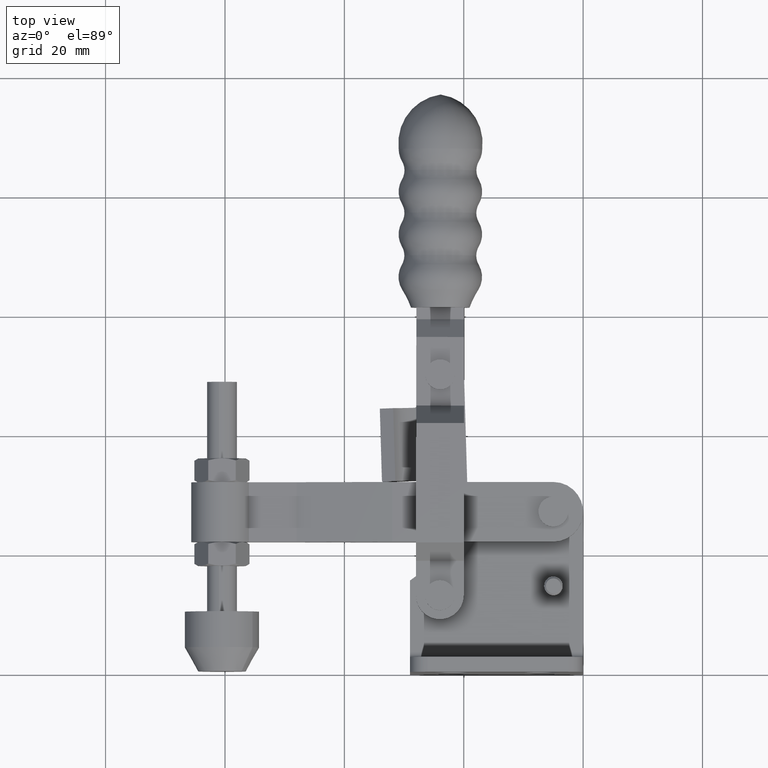
[diagram: clean part render]
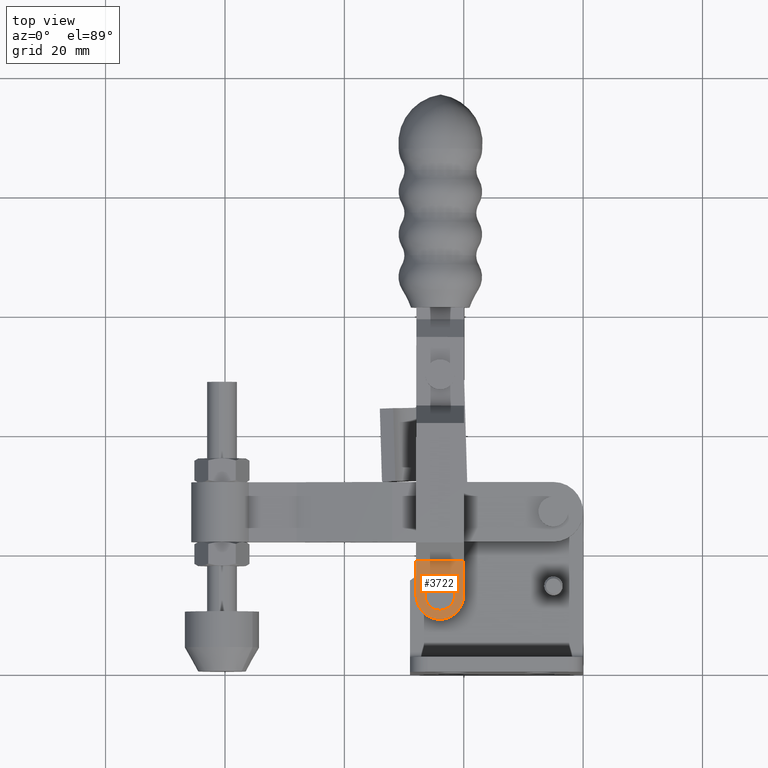
[diagram: same view with one face highlighted and labeled with its STEP entity id]
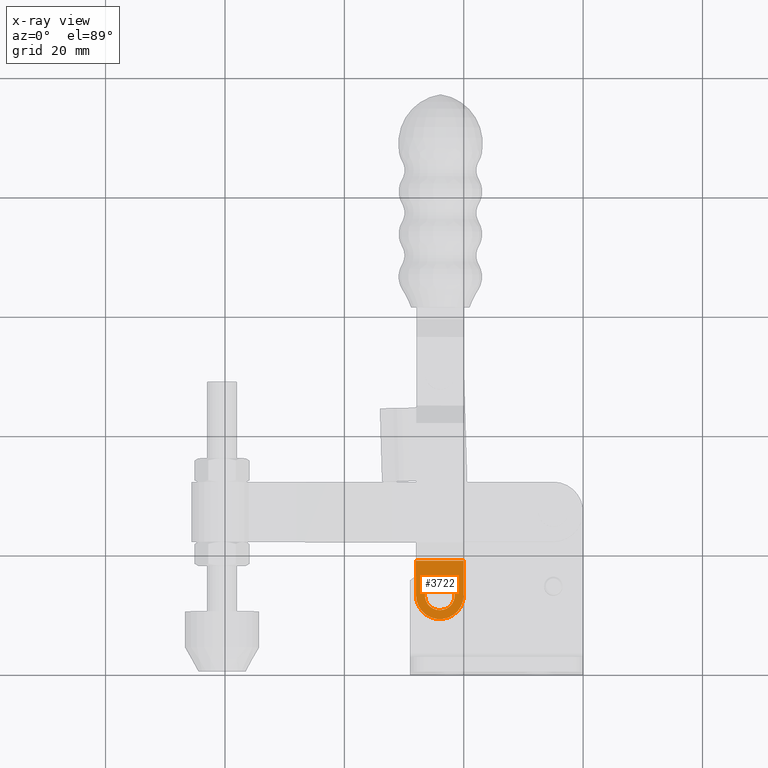
[diagram: x-ray of the same camera — body ghosted, the highlighted face saturated]
A machine part, top view. The second image highlights one B-rep face of the part: STEP entity #3722.
The next image is the same camera in x-ray: the body ghosted, the highlighted face saturated — about 0% of this face is hidden behind the body in this view.
In plain terms, the highlighted planar face has unit normal (-0, 0, -1).
Its self-contained STEP definition (entity closure, byte-faithful):
#206 = AXIS2_PLACEMENT_3D ( 'NONE', #2673, #7826, #3452 ) ;
#381 = EDGE_CURVE ( 'NONE', #3053, #2656, #4893, .T. ) ;
#434 = EDGE_LOOP ( 'NONE', ( #7868, #5192, #8756, #9531 ) ) ;
#502 = PLANE ( 'NONE',  #6645 ) ;
#795 = VERTEX_POINT ( 'NONE', #3860 ) ;
#881 = LINE ( 'NONE', #6065, #1128 ) ;
#988 = DIRECTION ( 'NONE',  ( -0.001365529430395566700, -0.9999990676642527300, -9.295653429488339400E-016 ) ) ;
#1128 = VECTOR ( 'NONE', #1587, 1000.000000000000000 ) ;
#1228 = AXIS2_PLACEMENT_3D ( 'NONE', #2123, #7298, #2895 ) ;
#1417 = CIRCLE ( 'NONE', #206, 2.500000000000001800 ) ;
#1540 = VECTOR ( 'NONE', #6091, 1000.000000000000000 ) ;
#1587 = DIRECTION ( 'NONE',  ( -0.001365529430395566700, -0.9999990676642527300, -9.295653429488339400E-016 ) ) ;
#1607 = CARTESIAN_POINT ( 'NONE',  ( -19.99208365864664600, 18.79453247473087900, 5.000000000000081700 ) ) ;
#1645 = VECTOR ( 'NONE', #988, 1000.000000000000000 ) ;
#1957 = VERTEX_POINT ( 'NONE', #4568 ) ;
#2021 = CARTESIAN_POINT ( 'NONE',  ( -23.99999999999994700, 12.99999999999990800, 5.000000000000079000 ) ) ;
#2123 = CARTESIAN_POINT ( 'NONE',  ( -23.99999999999995000, 12.99999999999994800, 5.000000000000079000 ) ) ;
#2656 = VERTEX_POINT ( 'NONE', #8801 ) ;
#2673 = CARTESIAN_POINT ( 'NONE',  ( -23.99999999999994700, 12.99999999999990800, 5.000000000000079000 ) ) ;
#2757 = EDGE_LOOP ( 'NONE', ( #4169, #7909 ) ) ;
#2826 = DIRECTION ( 'NONE',  ( -0.9999990676642527300, 0.001365529430395566700, 4.431672016822974400E-017 ) ) ;
#2866 = EDGE_CURVE ( 'NONE', #1957, #795, #881, .T. ) ;
#2895 = DIRECTION ( 'NONE',  ( -0.9999990676642527300, 0.001365529430395487800, 0.0000000000000000000 ) ) ;
#3040 = AXIS2_PLACEMENT_3D ( 'NONE', #2021, #5244, #4947 ) ;
#3053 = VERTEX_POINT ( 'NONE', #5710 ) ;
#3452 = DIRECTION ( 'NONE',  ( -0.9999990676642527300, 0.001365529430395750200, 0.0000000000000000000 ) ) ;
#3560 = LINE ( 'NONE', #1607, #1540 ) ;
#3660 = LINE ( 'NONE', #4011, #1645 ) ;
#3722 = ADVANCED_FACE ( 'NONE', ( #8410, #4772 ), #502, .F. ) ;
#3860 = CARTESIAN_POINT ( 'NONE',  ( -27.99999627065696500, 13.00546211772153200, 5.000000000000079900 ) ) ;
#4011 = CARTESIAN_POINT ( 'NONE',  ( -20.00546584706453500, 8.994541611621158900, 5.000000000000075500 ) ) ;
#4166 = CIRCLE ( 'NONE', #1228, 4.000000000000008900 ) ;
#4169 = ORIENTED_EDGE ( 'NONE', *, *, #381, .T. ) ;
#4568 = CARTESIAN_POINT ( 'NONE',  ( -27.99207619996067500, 18.80545671017402800, 5.000000000000088800 ) ) ;
#4772 = FACE_OUTER_BOUND ( 'NONE', #434, .T. ) ;
#4893 = CIRCLE ( 'NONE', #3040, 2.500000000000001800 ) ;
#4947 = DIRECTION ( 'NONE',  ( -0.9999990676642527300, 0.001365529430395750200, 0.0000000000000000000 ) ) ;
#5192 = ORIENTED_EDGE ( 'NONE', *, *, #9279, .F. ) ;
#5244 = DIRECTION ( 'NONE',  ( -4.304733001691146900E-017, 9.296249920674827500E-016, -1.000000000000000000 ) ) ;
#5710 = CARTESIAN_POINT ( 'NONE',  ( -26.48509904984317800, 13.27254855066248700, 5.000000000000079000 ) ) ;
#5816 = EDGE_CURVE ( 'NONE', #8303, #795, #4166, .T. ) ;
#6065 = CARTESIAN_POINT ( 'NONE',  ( -28.00545838837856400, 9.005465847064321800, 5.000000000000075500 ) ) ;
#6091 = DIRECTION ( 'NONE',  ( -0.9999990676642527300, 0.001365529430395566700, 4.431672016822974400E-017 ) ) ;
#6645 = AXIS2_PLACEMENT_3D ( 'NONE', #8673, #7237, #2826 ) ;
#6827 = CARTESIAN_POINT ( 'NONE',  ( -19.99208365864664600, 18.79453247473087900, 5.000000000000081700 ) ) ;
#7163 = CARTESIAN_POINT ( 'NONE',  ( -20.00000372934293200, 12.99453788227835300, 5.000000000000076400 ) ) ;
#7237 = DIRECTION ( 'NONE',  ( -4.304733001689495200E-017, 9.296249920674829400E-016, -1.000000000000000000 ) ) ;
#7298 = DIRECTION ( 'NONE',  ( -4.304733001691146900E-017, 9.296249920674827500E-016, -1.000000000000000000 ) ) ;
#7826 = DIRECTION ( 'NONE',  ( -4.304733001691146900E-017, 9.296249920674827500E-016, -1.000000000000000000 ) ) ;
#7868 = ORIENTED_EDGE ( 'NONE', *, *, #5816, .F. ) ;
#7909 = ORIENTED_EDGE ( 'NONE', *, *, #8256, .T. ) ;
#8256 = EDGE_CURVE ( 'NONE', #2656, #3053, #1417, .T. ) ;
#8303 = VERTEX_POINT ( 'NONE', #7163 ) ;
#8410 = FACE_BOUND ( 'NONE', #2757, .T. ) ;
#8647 = EDGE_CURVE ( 'NONE', #8681, #1957, #3560, .T. ) ;
#8673 = CARTESIAN_POINT ( 'NONE',  ( -20.00546584706453500, 8.994541611621158900, 5.000000000000075500 ) ) ;
#8681 = VERTEX_POINT ( 'NONE', #6827 ) ;
#8756 = ORIENTED_EDGE ( 'NONE', *, *, #8647, .T. ) ;
#8801 = CARTESIAN_POINT ( 'NONE',  ( -21.51490095015671900, 12.72745144933732700, 5.000000000000079000 ) ) ;
#9279 = EDGE_CURVE ( 'NONE', #8681, #8303, #3660, .T. ) ;
#9531 = ORIENTED_EDGE ( 'NONE', *, *, #2866, .T. ) ;